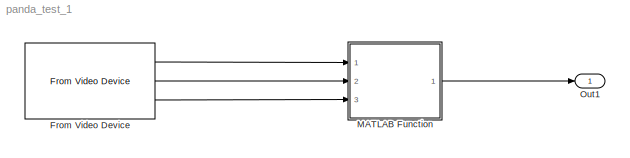
MODEL panda_test_1
KIND model
BLOCK [Reference] From Video Device  REF=imaqlib/From Video Device
  BayerSensorAlignment = grbg
  BlockHandle = 4.001
  CanDoHWTrigger = no
  DataType = uint8
  DevXMLPath = C:\\Program Files<path>
  Device = winvideo 1 (Microsoft LifeCam HD-3000)
  DeviceMenu = winvideo 1 (Integrated Webcam)
  EnableHWTrigger = off
  EngLibPath = C:\\Program Files<path>
  EngXMLPath = C:\\Program Files<path>
  ObjConstructor = videoinput('winvideo', 1)
  OutputPortsMode = Separate color signals
  Ports = [0, 3]
  ROIColumn = 0
  ROIHeight = 720
  ROIPosition = [0 0 720 1280]
  ROIRow = 0
  ROIWidth = 1280
  ReturnedColorSpace = YCbCr
  SID = 1
  SampleTime = 1/30
  SourceBlock = imaqlib/From Video Device
  SourceType = From Video Device
  TriggerConfiguration = none/none
  UserData = DataTag0
  UserDataPersistent = on
  VideoFormat = YUY2_1280x720
  VideoFormatMenu = YUY2_1280x720
  VideoSource = input1
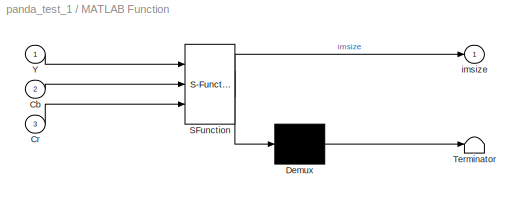
BLOCK [SubSystem] MATLAB Function
  ErrorFcn = Stateflow.Translate.translate
  FunctionWithSeparateData = off
  MaskDescription = Embedded MATLAB block
  MaskDisplay = bgColor = Simulink.Root.ColorString2Rgb(get_param(gcbh, 'BackgroundColor')); image(imread('private/eml_membrane_16.png','png','BackgroundColor',bgColor(1:3)),'center'); disp([10 10 'fcn']);
  MaskHideContents = off
  MaskIconFrame = on
  MaskIconOpaque = off
  MaskIconRotate = none
  MaskIconUnits = normalized
  MaskPortRotate = default
  MaskSelfModifiable = on
  MaskType = Stateflow
  MinAlgLoopOccurrences = off
  Opaque = off
  PermitHierarchicalResolution = ExplicitOnly
  Ports = [3, 1]
  PropExecContextOutsideSubsystem = off
  RTWSystemCode = Auto
  RequestExecContextInheritance = off
  SFBlockType = MATLAB Function
  SID = 2
  TreatAsAtomicUnit = on
BLOCK [Demux] MATLAB Function/ Demux 
  Outputs = 1
  Ports = [1, 1]
  SID = 2::25
BLOCK [S-Function] MATLAB Function/ SFunction 
  EnableBusSupport = on
  FunctionName = sf_sfun
  PortCounts = [3 2]
  Ports = [3, 2]
  SID = 2::24
  Tag = Stateflow S-Function panda_test_1 2
BLOCK [Terminator] MATLAB Function/ Terminator 
  SID = 2::27
BLOCK [Inport] MATLAB Function/Cb
  IconDisplay = Port number
  Port = 2
  SID = 2::18
BLOCK [Inport] MATLAB Function/Cr
  IconDisplay = Port number
  Port = 3
  SID = 2::19
BLOCK [Inport] MATLAB Function/Y
  IconDisplay = Port number
  SID = 2::1
BLOCK [Outport] MATLAB Function/imsize
  IconDisplay = Port number
  SID = 2::5
BLOCK [Outport] Out1
  IconDisplay = Port number
  SID = 6
LINE From Video Device:1 -> MATLAB Function:1
LINE From Video Device:2 -> MATLAB Function:2
LINE From Video Device:3 -> MATLAB Function:3
LINE MATLAB Function/ Demux :1 -> MATLAB Function/ Terminator :1
LINE MATLAB Function/ SFunction :1 -> MATLAB Function/ Demux :1
LINE MATLAB Function/ SFunction :2 -> MATLAB Function/imsize:1
LINE MATLAB Function/Cb:1 -> MATLAB Function/ SFunction :2
LINE MATLAB Function/Cr:1 -> MATLAB Function/ SFunction :3
LINE MATLAB Function/Y:1 -> MATLAB Function/ SFunction :1
LINE MATLAB Function:1 -> Out1:1
CHART MATLAB Function states=1 transitions=1
  STATE_LABEL 'eML_blk_kernel()'
note: 3 file-system paths scrubbed to <path> (not preserved elsewhere — flat text is the only slx artifact)
